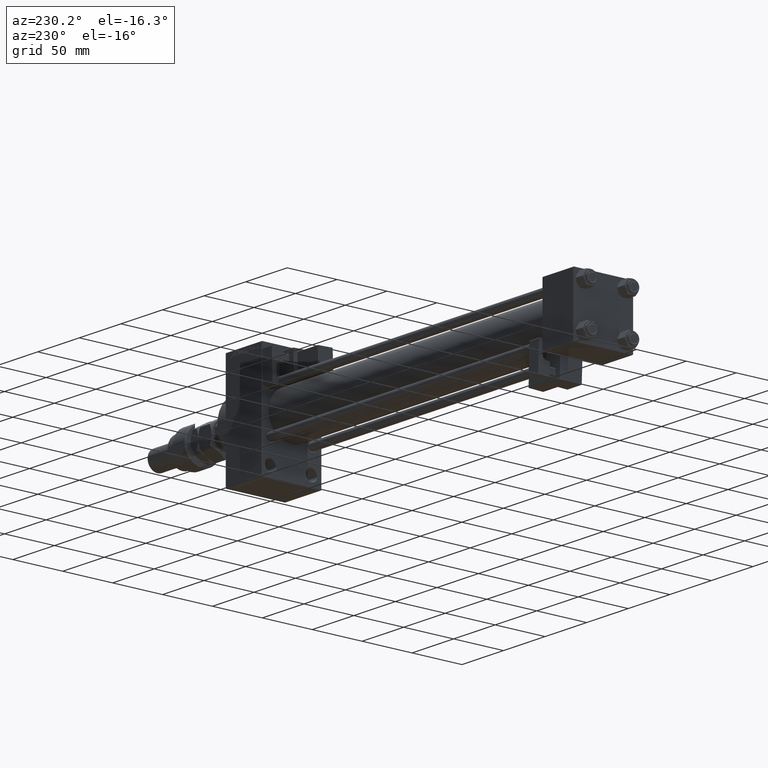
[diagram: clean part render]
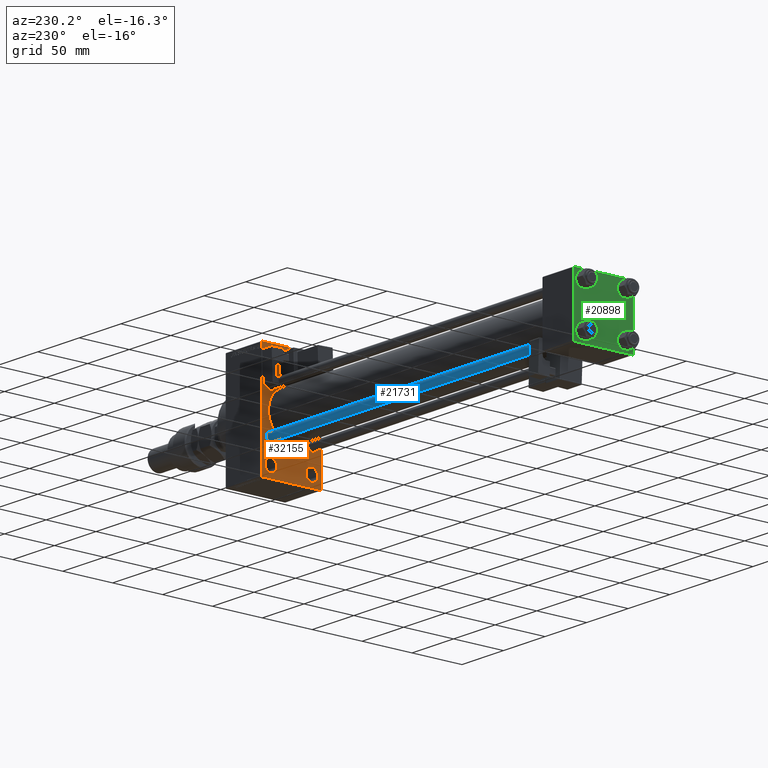
[diagram: same view with three faces highlighted in distinct colors, each labeled with its STEP entity id]
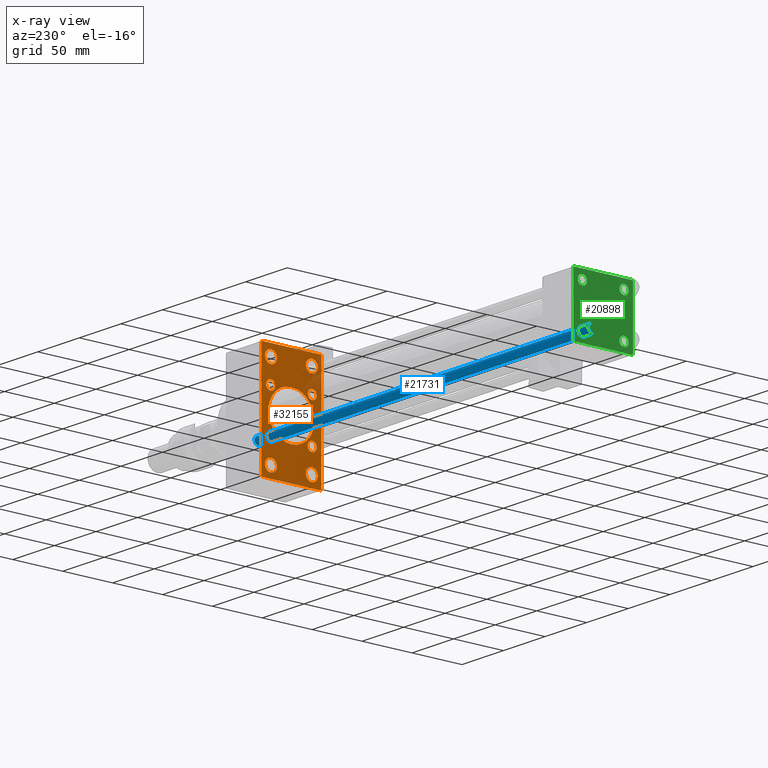
[diagram: x-ray of the same camera — body ghosted, the three highlighted faces saturated]
A machine part, auxiliary view with three faces highlighted in distinct colors.
The next image is the same camera in x-ray (body ghosted, the three faces saturated) — at least one of them is partly hidden behind the body in this view.
Their STEP definitions:

[orange] entity #32155 — the highlighted planar face has unit normal (-1, 0, 0).
#59 = VERTEX_POINT ( 'NONE', #12211 ) ;
#117 = VERTEX_POINT ( 'NONE', #50475 ) ;
#183 = AXIS2_PLACEMENT_3D ( 'NONE', #31248, #50686, #6007 ) ;
#408 = VERTEX_POINT ( 'NONE', #1765 ) ;
#413 = CARTESIAN_POINT ( 'NONE',  ( 375.0000000000000000, -20.50000000000000000, 37.49999999999999289 ) ) ;
#680 = CARTESIAN_POINT ( 'NONE',  ( 375.0000000000000000, 20.50000000000000000, -37.49999999999999289 ) ) ;
#979 = DIRECTION ( 'NONE',  ( 1.000000000000000000, -0.000000000000000000, 0.000000000000000000 ) ) ;
#1020 = CARTESIAN_POINT ( 'NONE',  ( 375.0000000000000000, 29.49999999999999645, 54.49999999999999289 ) ) ;
#1101 = ORIENTED_EDGE ( 'NONE', *, *, #19518, .T. ) ;
#1197 = AXIS2_PLACEMENT_3D ( 'NONE', #47681, #34672, #39453 ) ;
#1434 = EDGE_LOOP ( 'NONE', ( #31017, #28798 ) ) ;
#1578 = VECTOR ( 'NONE', #6321, 1000.000000000000000 ) ;
#1721 = VECTOR ( 'NONE', #31046, 1000.000000000000114 ) ;
#1765 = CARTESIAN_POINT ( 'NONE',  ( 375.0000000000000000, 20.84999999999999787, 16.34999999999999432 ) ) ;
#1812 = CARTESIAN_POINT ( 'NONE',  ( 375.0000000000000000, -42.00000000000048317, -41.99999999999902656 ) ) ;
#1841 = CIRCLE ( 'NONE', #183, 4.500000000000007105 ) ;
#2206 = FACE_BOUND ( 'NONE', #3125, .T. ) ;
#3125 = EDGE_LOOP ( 'NONE', ( #33328, #29159 ) ) ;
#3428 = EDGE_CURVE ( 'NONE', #25368, #44327, #10071, .T. ) ;
#3562 = DIRECTION ( 'NONE',  ( 1.000000000000000000, -0.000000000000000000, 0.000000000000000000 ) ) ;
#3766 = VERTEX_POINT ( 'NONE', #33862 ) ;
#3930 = VECTOR ( 'NONE', #23853, 1000.000000000000000 ) ;
#4395 = EDGE_LOOP ( 'NONE', ( #10748, #25050 ) ) ;
#4497 = DIRECTION ( 'NONE',  ( 0.000000000000000000, 0.000000000000000000, -1.000000000000000000 ) ) ;
#5250 = VERTEX_POINT ( 'NONE', #29129 ) ;
#5382 = AXIS2_PLACEMENT_3D ( 'NONE', #14055, #30282, #10084 ) ;
#5573 = CARTESIAN_POINT ( 'NONE',  ( 375.0000000000000000, -20.84999999999999076, 20.85000000000000497 ) ) ;
#5615 = CIRCLE ( 'NONE', #35328, 4.500000000000007105 ) ;
#5690 = ORIENTED_EDGE ( 'NONE', *, *, #21542, .T. ) ;
#5714 = CARTESIAN_POINT ( 'NONE',  ( 375.0000000000000000, -20.50000000000000000, -43.50000000000000000 ) ) ;
#6007 = DIRECTION ( 'NONE',  ( 0.000000000000000000, 0.000000000000000000, 1.000000000000000000 ) ) ;
#6098 = LINE ( 'NONE', #14074, #33436 ) ;
#6142 = VECTOR ( 'NONE', #50564, 1000.000000000000000 ) ;
#6176 = FACE_BOUND ( 'NONE', #20462, .T. ) ;
#6189 = CIRCLE ( 'NONE', #19803, 4.500000000000007105 ) ;
#6321 = DIRECTION ( 'NONE',  ( 0.000000000000000000, 0.000000000000000000, -1.000000000000000000 ) ) ;
#6338 = DIRECTION ( 'NONE',  ( 0.000000000000000000, 0.7071067811865474617, -0.7071067811865474617 ) ) ;
#6402 = CARTESIAN_POINT ( 'NONE',  ( 375.0000000000000000, -20.50000000000000000, -43.50000000000000000 ) ) ;
#6947 = EDGE_CURVE ( 'NONE', #34941, #34097, #43460, .T. ) ;
#7208 = VERTEX_POINT ( 'NONE', #31034 ) ;
#7414 = ORIENTED_EDGE ( 'NONE', *, *, #44612, .T. ) ;
#7624 = CARTESIAN_POINT ( 'NONE',  ( 375.0000000000000000, 29.99999999999999645, 54.49999999999999289 ) ) ;
#7672 = DIRECTION ( 'NONE',  ( 1.000000000000000000, -0.000000000000000000, 0.000000000000000000 ) ) ;
#8368 = VERTEX_POINT ( 'NONE', #18851 ) ;
#8966 = CARTESIAN_POINT ( 'NONE',  ( 375.0000000000000000, -20.84999999999999076, 25.35000000000001208 ) ) ;
#9182 = ORIENTED_EDGE ( 'NONE', *, *, #3428, .T. ) ;
#9243 = AXIS2_PLACEMENT_3D ( 'NONE', #22633, #51063, #43601 ) ;
#9581 = VERTEX_POINT ( 'NONE', #34736 ) ;
#9906 = EDGE_CURVE ( 'NONE', #30880, #11847, #17242, .T. ) ;
#9924 = FACE_BOUND ( 'NONE', #1434, .T. ) ;
#10071 = LINE ( 'NONE', #43013, #1721 ) ;
#10084 = DIRECTION ( 'NONE',  ( 0.000000000000000000, 0.000000000000000000, -1.000000000000000000 ) ) ;
#10086 = EDGE_LOOP ( 'NONE', ( #19036, #33116 ) ) ;
#10480 = CARTESIAN_POINT ( 'NONE',  ( 375.0000000000000000, 20.50000000000000000, 37.49999999999999289 ) ) ;
#10653 = DIRECTION ( 'NONE',  ( 0.000000000000000000, 0.000000000000000000, 1.000000000000000000 ) ) ;
#10701 = DIRECTION ( 'NONE',  ( -0.000000000000000000, 0.000000000000000000, 1.000000000000000000 ) ) ;
#10748 = ORIENTED_EDGE ( 'NONE', *, *, #42788, .T. ) ;
#11625 = CARTESIAN_POINT ( 'NONE',  ( 375.0000000000000000, -20.50000000000000000, -37.49999999999999289 ) ) ;
#11639 = DIRECTION ( 'NONE',  ( 1.000000000000000000, -0.000000000000000000, 0.000000000000000000 ) ) ;
#11847 = VERTEX_POINT ( 'NONE', #11625 ) ;
#11953 = VERTEX_POINT ( 'NONE', #8966 ) ;
#11989 = ORIENTED_EDGE ( 'NONE', *, *, #14579, .T. ) ;
#12211 = CARTESIAN_POINT ( 'NONE',  ( 375.0000000000000000, -20.50000000000000000, 49.50000000000000000 ) ) ;
#12250 = VERTEX_POINT ( 'NONE', #413 ) ;
#12419 = CARTESIAN_POINT ( 'NONE',  ( 375.0000000000000000, -20.50000000000000000, 43.50000000000000000 ) ) ;
#12435 = EDGE_LOOP ( 'NONE', ( #11989, #1101, #51547, #9182, #19802, #7414, #13062, #47613 ) ) ;
#12451 = AXIS2_PLACEMENT_3D ( 'NONE', #42874, #35423, #38876 ) ;
#12606 = CARTESIAN_POINT ( 'NONE',  ( 375.0000000000000000, 41.99999999999996447, -41.99999999999996447 ) ) ;
#12891 = EDGE_CURVE ( 'NONE', #16902, #40856, #19063, .T. ) ;
#13062 = ORIENTED_EDGE ( 'NONE', *, *, #40698, .T. ) ;
#14055 = CARTESIAN_POINT ( 'NONE',  ( 375.0000000000000000, -2.602085213965210642E-15, 0.000000000000000000 ) ) ;
#14074 = CARTESIAN_POINT ( 'NONE',  ( 375.0000000000000000, 29.99999999999999645, -54.49999999999999289 ) ) ;
#14410 = FACE_BOUND ( 'NONE', #41681, .T. ) ;
#14579 = EDGE_CURVE ( 'NONE', #3766, #23573, #6098, .T. ) ;
#14672 = FACE_BOUND ( 'NONE', #49464, .T. ) ;
#14749 = EDGE_CURVE ( 'NONE', #7208, #43477, #29192, .T. ) ;
#14859 = VERTEX_POINT ( 'NONE', #1020 ) ;
#15129 = DIRECTION ( 'NONE',  ( 1.000000000000000000, -0.000000000000000000, 0.000000000000000000 ) ) ;
#15358 = LINE ( 'NONE', #43276, #18190 ) ;
#15772 = CARTESIAN_POINT ( 'NONE',  ( 375.0000000000000000, 20.50000000000000000, -43.50000000000000000 ) ) ;
#15855 = EDGE_CURVE ( 'NONE', #12250, #59, #17353, .T. ) ;
#16902 = VERTEX_POINT ( 'NONE', #49067 ) ;
#16907 = AXIS2_PLACEMENT_3D ( 'NONE', #33175, #24224, #50170 ) ;
#17242 = CIRCLE ( 'NONE', #18955, 6.000000000000005329 ) ;
#17353 = CIRCLE ( 'NONE', #28398, 6.000000000000005329 ) ;
#17553 = DIRECTION ( 'NONE',  ( 1.000000000000000000, -0.000000000000000000, 0.000000000000000000 ) ) ;
#18157 = FACE_BOUND ( 'NONE', #40794, .T. ) ;
#18190 = VECTOR ( 'NONE', #6338, 1000.000000000000114 ) ;
#18851 = CARTESIAN_POINT ( 'NONE',  ( 375.0000000000000000, 20.50000000000000000, -49.50000000000000000 ) ) ;
#18955 = AXIS2_PLACEMENT_3D ( 'NONE', #5714, #21938, #33114 ) ;
#19036 = ORIENTED_EDGE ( 'NONE', *, *, #25389, .T. ) ;
#19063 = CIRCLE ( 'NONE', #41144, 4.500000000000007105 ) ;
#19518 = EDGE_CURVE ( 'NONE', #23573, #9581, #30769, .T. ) ;
#19654 = EDGE_CURVE ( 'NONE', #14859, #44327, #44047, .T. ) ;
#19708 = EDGE_CURVE ( 'NONE', #117, #20716, #5615, .T. ) ;
#19802 = ORIENTED_EDGE ( 'NONE', *, *, #19654, .F. ) ;
#19803 = AXIS2_PLACEMENT_3D ( 'NONE', #5573, #17553, #21539 ) ;
#20462 = EDGE_LOOP ( 'NONE', ( #43248, #5690 ) ) ;
#20716 = VERTEX_POINT ( 'NONE', #47784 ) ;
#21136 = CIRCLE ( 'NONE', #16907, 4.500000000000007105 ) ;
#21425 = VERTEX_POINT ( 'NONE', #25828 ) ;
#21539 = DIRECTION ( 'NONE',  ( 0.000000000000000000, 0.000000000000000000, 1.000000000000000000 ) ) ;
#21542 = EDGE_CURVE ( 'NONE', #43477, #7208, #38112, .T. ) ;
#21938 = DIRECTION ( 'NONE',  ( 1.000000000000000000, -0.000000000000000000, 0.000000000000000000 ) ) ;
#22417 = FACE_BOUND ( 'NONE', #4395, .T. ) ;
#22551 = CARTESIAN_POINT ( 'NONE',  ( 375.0000000000000000, -30.00000000000000000, 54.50000000000000000 ) ) ;
#22598 = DIRECTION ( 'NONE',  ( 0.000000000000000000, -1.000000000000000000, -1.156482317317871478E-16 ) ) ;
#22633 = CARTESIAN_POINT ( 'NONE',  ( 375.0000000000000000, 20.50000000000000000, 43.50000000000000000 ) ) ;
#23398 = CARTESIAN_POINT ( 'NONE',  ( 375.0000000000000000, -29.49999999999994671, -54.50000000000000000 ) ) ;
#23573 = VERTEX_POINT ( 'NONE', #23398 ) ;
#23853 = DIRECTION ( 'NONE',  ( 0.000000000000000000, -1.000000000000000000, 1.156482317317871478E-16 ) ) ;
#24224 = DIRECTION ( 'NONE',  ( 1.000000000000000000, -0.000000000000000000, 0.000000000000000000 ) ) ;
#24290 = CARTESIAN_POINT ( 'NONE',  ( 375.0000000000000000, -29.49999999999994671, 54.50000000000000000 ) ) ;
#25050 = ORIENTED_EDGE ( 'NONE', *, *, #6947, .T. ) ;
#25191 = CIRCLE ( 'NONE', #12451, 4.500000000000007105 ) ;
#25368 = VERTEX_POINT ( 'NONE', #32681 ) ;
#25389 = EDGE_CURVE ( 'NONE', #40372, #8368, #36231, .T. ) ;
#25761 = CARTESIAN_POINT ( 'NONE',  ( 375.0000000000000000, -20.84999999999999076, -20.85000000000000497 ) ) ;
#25811 = ORIENTED_EDGE ( 'NONE', *, *, #12891, .T. ) ;
#25828 = CARTESIAN_POINT ( 'NONE',  ( 375.0000000000000000, -20.84999999999999076, 16.34999999999999787 ) ) ;
#25861 = EDGE_CURVE ( 'NONE', #28994, #408, #25191, .T. ) ;
#25944 = ORIENTED_EDGE ( 'NONE', *, *, #27739, .T. ) ;
#26004 = DIRECTION ( 'NONE',  ( 0.000000000000000000, 0.000000000000000000, 1.000000000000000000 ) ) ;
#26265 = DIRECTION ( 'NONE',  ( 0.000000000000000000, -0.7071067811865352493, 0.7071067811865597852 ) ) ;
#26986 = ORIENTED_EDGE ( 'NONE', *, *, #9906, .T. ) ;
#27007 = EDGE_CURVE ( 'NONE', #36133, #3766, #49568, .T. ) ;
#27537 = DIRECTION ( 'NONE',  ( 0.000000000000000000, 0.000000000000000000, 1.000000000000000000 ) ) ;
#27655 = DIRECTION ( 'NONE',  ( 1.000000000000000000, -0.000000000000000000, 0.000000000000000000 ) ) ;
#27739 = EDGE_CURVE ( 'NONE', #408, #28994, #42246, .T. ) ;
#28056 = DIRECTION ( 'NONE',  ( 1.000000000000000000, -0.000000000000000000, 0.000000000000000000 ) ) ;
#28398 = AXIS2_PLACEMENT_3D ( 'NONE', #40119, #15129, #31342 ) ;
#28669 = VECTOR ( 'NONE', #49308, 1000.000000000000114 ) ;
#28719 = CARTESIAN_POINT ( 'NONE',  ( 375.0000000000000000, -20.84999999999999076, -16.34999999999999787 ) ) ;
#28798 = ORIENTED_EDGE ( 'NONE', *, *, #47582, .T. ) ;
#28994 = VERTEX_POINT ( 'NONE', #47826 ) ;
#29129 = CARTESIAN_POINT ( 'NONE',  ( 375.0000000000000000, 29.99999999999999645, 53.99999999999999289 ) ) ;
#29159 = ORIENTED_EDGE ( 'NONE', *, *, #15855, .T. ) ;
#29192 = CIRCLE ( 'NONE', #40239, 6.000000000000005329 ) ;
#29774 = EDGE_CURVE ( 'NONE', #25368, #9581, #34239, .T. ) ;
#30282 = DIRECTION ( 'NONE',  ( 1.000000000000000000, 0.000000000000000000, 0.000000000000000000 ) ) ;
#30311 = ORIENTED_EDGE ( 'NONE', *, *, #19708, .T. ) ;
#30640 = PLANE ( 'NONE',  #39899 ) ;
#30668 = EDGE_CURVE ( 'NONE', #40856, #16902, #21136, .T. ) ;
#30712 = AXIS2_PLACEMENT_3D ( 'NONE', #32941, #45172, #4497 ) ;
#30769 = LINE ( 'NONE', #1812, #41295 ) ;
#30880 = VERTEX_POINT ( 'NONE', #52285 ) ;
#30898 = FACE_BOUND ( 'NONE', #10086, .T. ) ;
#31017 = ORIENTED_EDGE ( 'NONE', *, *, #50291, .T. ) ;
#31034 = CARTESIAN_POINT ( 'NONE',  ( 375.0000000000000000, 20.50000000000000000, 49.50000000000000000 ) ) ;
#31046 = DIRECTION ( 'NONE',  ( -0.000000000000000000, 0.7071067811865451302, 0.7071067811865500152 ) ) ;
#31248 = CARTESIAN_POINT ( 'NONE',  ( 375.0000000000000000, -20.84999999999999076, 20.85000000000000497 ) ) ;
#31342 = DIRECTION ( 'NONE',  ( 0.000000000000000000, 0.000000000000000000, 1.000000000000000000 ) ) ;
#31874 = CARTESIAN_POINT ( 'NONE',  ( 375.0000000000000000, 20.50000000000000000, 43.50000000000000000 ) ) ;
#31998 = DIRECTION ( 'NONE',  ( 0.000000000000000000, 0.000000000000000000, 1.000000000000000000 ) ) ;
#32155 = ADVANCED_FACE ( 'NONE', ( #2206, #14672, #30898, #6176, #9924, #34629, #18157, #14410, #22417, #34366 ), #30640, .T. ) ;
#32681 = CARTESIAN_POINT ( 'NONE',  ( 375.0000000000000000, -30.00000000000000000, 53.99999999999994316 ) ) ;
#32941 = CARTESIAN_POINT ( 'NONE',  ( 375.0000000000000000, -2.602085213965210642E-15, 0.000000000000000000 ) ) ;
#33114 = DIRECTION ( 'NONE',  ( 0.000000000000000000, 0.000000000000000000, 1.000000000000000000 ) ) ;
#33116 = ORIENTED_EDGE ( 'NONE', *, *, #48989, .T. ) ;
#33175 = CARTESIAN_POINT ( 'NONE',  ( 375.0000000000000000, -20.84999999999999076, -20.85000000000000497 ) ) ;
#33328 = ORIENTED_EDGE ( 'NONE', *, *, #38535, .T. ) ;
#33436 = VECTOR ( 'NONE', #22598, 1000.000000000000000 ) ;
#33862 = CARTESIAN_POINT ( 'NONE',  ( 375.0000000000000000, 29.49999999999993960, -54.49999999999999289 ) ) ;
#33881 = ORIENTED_EDGE ( 'NONE', *, *, #30668, .T. ) ;
#33968 = DIRECTION ( 'NONE',  ( 1.000000000000000000, -0.000000000000000000, 0.000000000000000000 ) ) ;
#34097 = VERTEX_POINT ( 'NONE', #46589 ) ;
#34239 = LINE ( 'NONE', #22551, #1578 ) ;
#34333 = LINE ( 'NONE', #46820, #6142 ) ;
#34366 = FACE_OUTER_BOUND ( 'NONE', #12435, .T. ) ;
#34629 = FACE_BOUND ( 'NONE', #43668, .T. ) ;
#34672 = DIRECTION ( 'NONE',  ( 1.000000000000000000, -0.000000000000000000, 0.000000000000000000 ) ) ;
#34736 = CARTESIAN_POINT ( 'NONE',  ( 375.0000000000000000, -30.00000000000000000, -53.99999999999992895 ) ) ;
#34941 = VERTEX_POINT ( 'NONE', #37837 ) ;
#35147 = CARTESIAN_POINT ( 'NONE',  ( 375.0000000000000000, 0.000000000000000000, 0.000000000000000000 ) ) ;
#35328 = AXIS2_PLACEMENT_3D ( 'NONE', #41378, #979, #37374 ) ;
#35423 = DIRECTION ( 'NONE',  ( 1.000000000000000000, -0.000000000000000000, 0.000000000000000000 ) ) ;
#36060 = AXIS2_PLACEMENT_3D ( 'NONE', #6402, #27655, #10653 ) ;
#36133 = VERTEX_POINT ( 'NONE', #36718 ) ;
#36231 = CIRCLE ( 'NONE', #49819, 6.000000000000005329 ) ;
#36312 = ORIENTED_EDGE ( 'NONE', *, *, #25861, .T. ) ;
#36718 = CARTESIAN_POINT ( 'NONE',  ( 375.0000000000000000, 29.99999999999999645, -53.99999999999993605 ) ) ;
#37374 = DIRECTION ( 'NONE',  ( 0.000000000000000000, 0.000000000000000000, 1.000000000000000000 ) ) ;
#37694 = CARTESIAN_POINT ( 'NONE',  ( 375.0000000000000000, 20.50000000000000000, -43.50000000000000000 ) ) ;
#37837 = CARTESIAN_POINT ( 'NONE',  ( 375.0000000000000000, 2.146024240737016609E-16, -23.00000000000000000 ) ) ;
#38112 = CIRCLE ( 'NONE', #9243, 6.000000000000005329 ) ;
#38535 = EDGE_CURVE ( 'NONE', #59, #12250, #49386, .T. ) ;
#38876 = DIRECTION ( 'NONE',  ( 0.000000000000000000, 0.000000000000000000, 1.000000000000000000 ) ) ;
#39324 = DIRECTION ( 'NONE',  ( 0.000000000000000000, 0.000000000000000000, 1.000000000000000000 ) ) ;
#39453 = DIRECTION ( 'NONE',  ( 0.000000000000000000, 0.000000000000000000, 1.000000000000000000 ) ) ;
#39763 = CARTESIAN_POINT ( 'NONE',  ( 375.0000000000000000, 20.84999999999999787, 20.85000000000000142 ) ) ;
#39899 = AXIS2_PLACEMENT_3D ( 'NONE', #35147, #47127, #10701 ) ;
#40119 = CARTESIAN_POINT ( 'NONE',  ( 375.0000000000000000, -20.50000000000000000, 43.50000000000000000 ) ) ;
#40239 = AXIS2_PLACEMENT_3D ( 'NONE', #31874, #7672, #39324 ) ;
#40372 = VERTEX_POINT ( 'NONE', #680 ) ;
#40698 = EDGE_CURVE ( 'NONE', #5250, #36133, #34333, .T. ) ;
#40794 = EDGE_LOOP ( 'NONE', ( #47494, #30311 ) ) ;
#40804 = DIRECTION ( 'NONE',  ( 0.000000000000000000, 0.000000000000000000, 1.000000000000000000 ) ) ;
#40805 = DIRECTION ( 'NONE',  ( 1.000000000000000000, -0.000000000000000000, 0.000000000000000000 ) ) ;
#40856 = VERTEX_POINT ( 'NONE', #28719 ) ;
#41144 = AXIS2_PLACEMENT_3D ( 'NONE', #25761, #28056, #40804 ) ;
#41295 = VECTOR ( 'NONE', #26265, 1000.000000000000000 ) ;
#41378 = CARTESIAN_POINT ( 'NONE',  ( 375.0000000000000000, 20.84999999999999787, -20.85000000000000142 ) ) ;
#41681 = EDGE_LOOP ( 'NONE', ( #33881, #25811 ) ) ;
#42246 = CIRCLE ( 'NONE', #49070, 4.500000000000007105 ) ;
#42788 = EDGE_CURVE ( 'NONE', #34097, #34941, #44450, .T. ) ;
#42874 = CARTESIAN_POINT ( 'NONE',  ( 375.0000000000000000, 20.84999999999999787, 20.85000000000000142 ) ) ;
#43013 = CARTESIAN_POINT ( 'NONE',  ( 375.0000000000000000, -42.00000000000007105, 41.99999999999977973 ) ) ;
#43248 = ORIENTED_EDGE ( 'NONE', *, *, #14749, .T. ) ;
#43276 = CARTESIAN_POINT ( 'NONE',  ( 375.0000000000000000, 41.99999999999998579, 41.99999999999998579 ) ) ;
#43460 = CIRCLE ( 'NONE', #30712, 23.00000000000000000 ) ;
#43477 = VERTEX_POINT ( 'NONE', #10480 ) ;
#43544 = DIRECTION ( 'NONE',  ( 0.000000000000000000, 0.000000000000000000, 1.000000000000000000 ) ) ;
#43601 = DIRECTION ( 'NONE',  ( 0.000000000000000000, 0.000000000000000000, 1.000000000000000000 ) ) ;
#43668 = EDGE_LOOP ( 'NONE', ( #36312, #25944 ) ) ;
#44047 = LINE ( 'NONE', #7624, #3930 ) ;
#44181 = EDGE_CURVE ( 'NONE', #20716, #117, #47021, .T. ) ;
#44327 = VERTEX_POINT ( 'NONE', #24290 ) ;
#44371 = AXIS2_PLACEMENT_3D ( 'NONE', #15772, #3562, #31998 ) ;
#44450 = CIRCLE ( 'NONE', #5382, 23.00000000000000000 ) ;
#44612 = EDGE_CURVE ( 'NONE', #14859, #5250, #15358, .T. ) ;
#45172 = DIRECTION ( 'NONE',  ( 1.000000000000000000, 0.000000000000000000, 0.000000000000000000 ) ) ;
#46589 = CARTESIAN_POINT ( 'NONE',  ( 375.0000000000000000, -2.602085213965210642E-15, 23.00000000000000000 ) ) ;
#46820 = CARTESIAN_POINT ( 'NONE',  ( 375.0000000000000000, 29.99999999999999645, 54.49999999999999289 ) ) ;
#47021 = CIRCLE ( 'NONE', #1197, 4.500000000000007105 ) ;
#47127 = DIRECTION ( 'NONE',  ( -1.000000000000000000, 0.000000000000000000, -0.000000000000000000 ) ) ;
#47494 = ORIENTED_EDGE ( 'NONE', *, *, #44181, .T. ) ;
#47582 = EDGE_CURVE ( 'NONE', #21425, #11953, #1841, .T. ) ;
#47613 = ORIENTED_EDGE ( 'NONE', *, *, #27007, .T. ) ;
#47681 = CARTESIAN_POINT ( 'NONE',  ( 375.0000000000000000, 20.84999999999999787, -20.85000000000000142 ) ) ;
#47784 = CARTESIAN_POINT ( 'NONE',  ( 375.0000000000000000, 20.84999999999999787, -16.34999999999999432 ) ) ;
#47826 = CARTESIAN_POINT ( 'NONE',  ( 375.0000000000000000, 20.84999999999999787, 25.35000000000000853 ) ) ;
#48625 = CIRCLE ( 'NONE', #44371, 6.000000000000005329 ) ;
#48989 = EDGE_CURVE ( 'NONE', #8368, #40372, #48625, .T. ) ;
#49067 = CARTESIAN_POINT ( 'NONE',  ( 375.0000000000000000, -20.84999999999999076, -25.35000000000001208 ) ) ;
#49070 = AXIS2_PLACEMENT_3D ( 'NONE', #39763, #40805, #27537 ) ;
#49308 = DIRECTION ( 'NONE',  ( -0.000000000000000000, -0.7071067811865474617, -0.7071067811865474617 ) ) ;
#49386 = CIRCLE ( 'NONE', #51929, 6.000000000000005329 ) ;
#49464 = EDGE_LOOP ( 'NONE', ( #49927, #26986 ) ) ;
#49568 = LINE ( 'NONE', #12606, #28669 ) ;
#49819 = AXIS2_PLACEMENT_3D ( 'NONE', #37694, #33968, #26004 ) ;
#49927 = ORIENTED_EDGE ( 'NONE', *, *, #52213, .T. ) ;
#50170 = DIRECTION ( 'NONE',  ( 0.000000000000000000, 0.000000000000000000, 1.000000000000000000 ) ) ;
#50291 = EDGE_CURVE ( 'NONE', #11953, #21425, #6189, .T. ) ;
#50475 = CARTESIAN_POINT ( 'NONE',  ( 375.0000000000000000, 20.84999999999999787, -25.35000000000000853 ) ) ;
#50564 = DIRECTION ( 'NONE',  ( 0.000000000000000000, 0.000000000000000000, -1.000000000000000000 ) ) ;
#50686 = DIRECTION ( 'NONE',  ( 1.000000000000000000, -0.000000000000000000, 0.000000000000000000 ) ) ;
#51063 = DIRECTION ( 'NONE',  ( 1.000000000000000000, -0.000000000000000000, 0.000000000000000000 ) ) ;
#51547 = ORIENTED_EDGE ( 'NONE', *, *, #29774, .F. ) ;
#51929 = AXIS2_PLACEMENT_3D ( 'NONE', #12419, #11639, #43544 ) ;
#52208 = CIRCLE ( 'NONE', #36060, 6.000000000000005329 ) ;
#52213 = EDGE_CURVE ( 'NONE', #11847, #30880, #52208, .T. ) ;
#52285 = CARTESIAN_POINT ( 'NONE',  ( 375.0000000000000000, -20.50000000000000000, -49.50000000000000000 ) ) ;

[blue] entity #21731 — the highlighted cylindrical surface (edge-blend (fillet) strip) has radius 4 mm, axis along (1, -0, 0).
#1372 = ORIENTED_EDGE ( 'NONE', *, *, #13542, .T. ) ;
#2932 = EDGE_CURVE ( 'NONE', #40141, #21712, #42409, .T. ) ;
#2963 = VERTEX_POINT ( 'NONE', #39490 ) ;
#6939 = DIRECTION ( 'NONE',  ( -0.000000000000000000, -0.000000000000000000, 1.000000000000000000 ) ) ;
#7219 = CIRCLE ( 'NONE', #12304, 4.000000000000000000 ) ;
#7891 = CARTESIAN_POINT ( 'NONE',  ( -4.000000000000000000, 0.000000000000000000, 402.0000000000000000 ) ) ;
#8928 = VERTEX_POINT ( 'NONE', #51346 ) ;
#11717 = CARTESIAN_POINT ( 'NONE',  ( 0.000000000000000000, 0.000000000000000000, 0.5000000000000004441 ) ) ;
#12304 = AXIS2_PLACEMENT_3D ( 'NONE', #11717, #6939, #23167 ) ;
#12484 = CARTESIAN_POINT ( 'NONE',  ( 4.000000000000000000, 4.898587196589412829E-16, 0.5000000000000004441 ) ) ;
#12833 = ORIENTED_EDGE ( 'NONE', *, *, #51434, .F. ) ;
#13521 = CARTESIAN_POINT ( 'NONE',  ( 0.000000000000000000, 0.000000000000000000, 402.0000000000000000 ) ) ;
#13542 = EDGE_CURVE ( 'NONE', #21712, #8928, #7219, .T. ) ;
#13989 = DIRECTION ( 'NONE',  ( 1.000000000000000000, 0.000000000000000000, 0.000000000000000000 ) ) ;
#16949 = DIRECTION ( 'NONE',  ( 0.000000000000000000, 0.000000000000000000, -1.000000000000000000 ) ) ;
#18112 = CIRCLE ( 'NONE', #41067, 4.000000000000000000 ) ;
#21263 = DIRECTION ( 'NONE',  ( -0.000000000000000000, -0.000000000000000000, -1.000000000000000000 ) ) ;
#21712 = VERTEX_POINT ( 'NONE', #12484 ) ;
#21731 = ADVANCED_FACE ( 'NONE', ( #37461 ), #29746, .T. ) ;
#22242 = CARTESIAN_POINT ( 'NONE',  ( 4.000000000000000000, 4.898587196589412829E-16, 401.5000000000000568 ) ) ;
#23167 = DIRECTION ( 'NONE',  ( 1.000000000000000000, 0.000000000000000000, 0.000000000000000000 ) ) ;
#24115 = DIRECTION ( 'NONE',  ( -0.000000000000000000, -0.000000000000000000, -1.000000000000000000 ) ) ;
#26993 = CARTESIAN_POINT ( 'NONE',  ( 4.000000000000000000, 4.898587196589412829E-16, 402.0000000000000000 ) ) ;
#29579 = ORIENTED_EDGE ( 'NONE', *, *, #2932, .T. ) ;
#29746 = CYLINDRICAL_SURFACE ( 'NONE', #35529, 4.000000000000000000 ) ;
#31829 = LINE ( 'NONE', #7891, #37677 ) ;
#33421 = CARTESIAN_POINT ( 'NONE',  ( 0.000000000000000000, 0.000000000000000000, 401.5000000000000568 ) ) ;
#35529 = AXIS2_PLACEMENT_3D ( 'NONE', #13521, #21263, #37200 ) ;
#37200 = DIRECTION ( 'NONE',  ( -1.000000000000000000, 0.000000000000000000, 0.000000000000000000 ) ) ;
#37461 = FACE_OUTER_BOUND ( 'NONE', #49305, .T. ) ;
#37677 = VECTOR ( 'NONE', #24115, 1000.000000000000000 ) ;
#38157 = DIRECTION ( 'NONE',  ( -0.000000000000000000, -0.000000000000000000, -1.000000000000000000 ) ) ;
#38180 = VECTOR ( 'NONE', #38157, 1000.000000000000000 ) ;
#38566 = ORIENTED_EDGE ( 'NONE', *, *, #43094, .T. ) ;
#39490 = CARTESIAN_POINT ( 'NONE',  ( -4.000000000000000000, 0.000000000000000000, 401.5000000000000568 ) ) ;
#40141 = VERTEX_POINT ( 'NONE', #22242 ) ;
#41067 = AXIS2_PLACEMENT_3D ( 'NONE', #33421, #16949, #13989 ) ;
#42409 = LINE ( 'NONE', #26993, #38180 ) ;
#43094 = EDGE_CURVE ( 'NONE', #2963, #40141, #18112, .T. ) ;
#49305 = EDGE_LOOP ( 'NONE', ( #38566, #29579, #1372, #12833 ) ) ;
#51346 = CARTESIAN_POINT ( 'NONE',  ( -4.000000000000000000, 0.000000000000000000, 0.5000000000000004441 ) ) ;
#51434 = EDGE_CURVE ( 'NONE', #2963, #8928, #31829, .T. ) ;

[green] entity #20898 — the highlighted planar face has unit normal (-1, 0, 0).
#161 = VERTEX_POINT ( 'NONE', #43014 ) ;
#279 = EDGE_CURVE ( 'NONE', #9954, #44161, #52323, .T. ) ;
#578 = ORIENTED_EDGE ( 'NONE', *, *, #27625, .T. ) ;
#710 = AXIS2_PLACEMENT_3D ( 'NONE', #1531, #12963, #13736 ) ;
#809 = CARTESIAN_POINT ( 'NONE',  ( 0.000000000000000000, -20.84999999999999076, -20.85000000000000497 ) ) ;
#1009 = AXIS2_PLACEMENT_3D ( 'NONE', #44909, #5012, #4243 ) ;
#1505 = CIRCLE ( 'NONE', #5746, 4.500000000000017764 ) ;
#1531 = CARTESIAN_POINT ( 'NONE',  ( 0.000000000000000000, -20.84999999999999076, -20.85000000000000497 ) ) ;
#1833 = ORIENTED_EDGE ( 'NONE', *, *, #47954, .F. ) ;
#1907 = AXIS2_PLACEMENT_3D ( 'NONE', #809, #28463, #28192 ) ;
#2282 = CARTESIAN_POINT ( 'NONE',  ( 0.000000000000000000, 29.99999999999999289, 30.00000000000000000 ) ) ;
#2296 = DIRECTION ( 'NONE',  ( 0.000000000000000000, 0.000000000000000000, 1.000000000000000000 ) ) ;
#2363 = EDGE_CURVE ( 'NONE', #30697, #38473, #3409, .T. ) ;
#2583 = AXIS2_PLACEMENT_3D ( 'NONE', #27912, #35880, #40660 ) ;
#2864 = EDGE_CURVE ( 'NONE', #36058, #48468, #22490, .T. ) ;
#3409 = CIRCLE ( 'NONE', #9360, 4.500000000000017764 ) ;
#3596 = VECTOR ( 'NONE', #22706, 1000.000000000000000 ) ;
#4243 = DIRECTION ( 'NONE',  ( 0.000000000000000000, 0.000000000000000000, 1.000000000000000000 ) ) ;
#5012 = DIRECTION ( 'NONE',  ( 1.000000000000000000, -0.000000000000000000, 0.000000000000000000 ) ) ;
#5746 = AXIS2_PLACEMENT_3D ( 'NONE', #27270, #26484, #2296 ) ;
#6911 = EDGE_CURVE ( 'NONE', #38473, #30697, #36676, .T. ) ;
#7433 = DIRECTION ( 'NONE',  ( 0.000000000000000000, 0.000000000000000000, 1.000000000000000000 ) ) ;
#7504 = DIRECTION ( 'NONE',  ( 1.000000000000000000, -0.000000000000000000, 0.000000000000000000 ) ) ;
#7740 = VERTEX_POINT ( 'NONE', #46368 ) ;
#8647 = CARTESIAN_POINT ( 'NONE',  ( 0.000000000000000000, 29.99999999999999289, 29.50000000000000000 ) ) ;
#8968 = DIRECTION ( 'NONE',  ( -1.000000000000000000, 0.000000000000000000, -0.000000000000000000 ) ) ;
#9314 = CARTESIAN_POINT ( 'NONE',  ( 0.000000000000000000, 20.84999999999999787, 25.35000000000001918 ) ) ;
#9360 = AXIS2_PLACEMENT_3D ( 'NONE', #48110, #36398, #7433 ) ;
#9954 = VERTEX_POINT ( 'NONE', #35471 ) ;
#10921 = CARTESIAN_POINT ( 'NONE',  ( 0.000000000000000000, 20.84999999999999787, -16.34999999999998366 ) ) ;
#10965 = LINE ( 'NONE', #32220, #33222 ) ;
#11452 = CARTESIAN_POINT ( 'NONE',  ( 0.000000000000000000, 29.74999999999999645, 29.74999999999999645 ) ) ;
#11844 = VERTEX_POINT ( 'NONE', #44857 ) ;
#11890 = VECTOR ( 'NONE', #34177, 1000.000000000000000 ) ;
#12205 = CARTESIAN_POINT ( 'NONE',  ( 0.000000000000000000, 29.99999999999999289, 30.00000000000000000 ) ) ;
#12366 = DIRECTION ( 'NONE',  ( -0.000000000000000000, 0.7071067811865474617, 0.7071067811865474617 ) ) ;
#12963 = DIRECTION ( 'NONE',  ( 1.000000000000000000, -0.000000000000000000, 0.000000000000000000 ) ) ;
#13428 = EDGE_CURVE ( 'NONE', #36058, #47832, #35390, .T. ) ;
#13736 = DIRECTION ( 'NONE',  ( 0.000000000000000000, 0.000000000000000000, 1.000000000000000000 ) ) ;
#15208 = DIRECTION ( 'NONE',  ( 0.000000000000000000, 0.000000000000000000, 1.000000000000000000 ) ) ;
#15352 = DIRECTION ( 'NONE',  ( 0.000000000000000000, -0.7071067811865474617, 0.7071067811865474617 ) ) ;
#16404 = FACE_BOUND ( 'NONE', #30486, .T. ) ;
#16761 = VECTOR ( 'NONE', #31899, 1000.000000000000000 ) ;
#17319 = VERTEX_POINT ( 'NONE', #10921 ) ;
#17423 = ORIENTED_EDGE ( 'NONE', *, *, #42415, .T. ) ;
#17566 = ORIENTED_EDGE ( 'NONE', *, *, #28278, .T. ) ;
#17585 = CARTESIAN_POINT ( 'NONE',  ( 0.000000000000000000, -30.00000000000000000, 29.49999999999999289 ) ) ;
#18034 = CIRCLE ( 'NONE', #1907, 4.500000000000017764 ) ;
#18196 = EDGE_CURVE ( 'NONE', #47432, #161, #47870, .T. ) ;
#19243 = LINE ( 'NONE', #23219, #3596 ) ;
#19256 = ORIENTED_EDGE ( 'NONE', *, *, #37338, .T. ) ;
#19482 = DIRECTION ( 'NONE',  ( 0.000000000000000000, -1.000000000000000000, -1.156482317317871725E-16 ) ) ;
#20056 = ORIENTED_EDGE ( 'NONE', *, *, #6911, .T. ) ;
#20678 = DIRECTION ( 'NONE',  ( -0.000000000000000000, 0.000000000000000000, 1.000000000000000000 ) ) ;
#20898 = ADVANCED_FACE ( 'NONE', ( #41636, #29162, #16404, #45375, #40597 ), #40859, .T. ) ;
#21153 = CARTESIAN_POINT ( 'NONE',  ( 0.000000000000000000, -30.00000000000000000, -29.50000000000001776 ) ) ;
#22352 = ORIENTED_EDGE ( 'NONE', *, *, #35220, .T. ) ;
#22490 = LINE ( 'NONE', #2282, #11890 ) ;
#22532 = ORIENTED_EDGE ( 'NONE', *, *, #2864, .F. ) ;
#22706 = DIRECTION ( 'NONE',  ( 0.000000000000000000, 0.000000000000000000, -1.000000000000000000 ) ) ;
#23219 = CARTESIAN_POINT ( 'NONE',  ( 0.000000000000000000, -30.00000000000000000, 29.99999999999999289 ) ) ;
#23655 = EDGE_CURVE ( 'NONE', #47832, #47432, #27907, .T. ) ;
#23813 = LINE ( 'NONE', #44548, #36819 ) ;
#23886 = CIRCLE ( 'NONE', #50172, 4.500000000000017764 ) ;
#25175 = EDGE_LOOP ( 'NONE', ( #26063, #39129, #36715, #26345, #1833, #52611, #22532, #45503 ) ) ;
#25509 = CIRCLE ( 'NONE', #2583, 4.500000000000017764 ) ;
#26063 = ORIENTED_EDGE ( 'NONE', *, *, #23655, .T. ) ;
#26345 = ORIENTED_EDGE ( 'NONE', *, *, #279, .T. ) ;
#26484 = DIRECTION ( 'NONE',  ( 1.000000000000000000, -0.000000000000000000, 0.000000000000000000 ) ) ;
#26802 = VECTOR ( 'NONE', #39375, 999.9999999999998863 ) ;
#27143 = CARTESIAN_POINT ( 'NONE',  ( 0.000000000000000000, 29.74999999999957723, -29.75000000000040501 ) ) ;
#27270 = CARTESIAN_POINT ( 'NONE',  ( 0.000000000000000000, 20.84999999999999787, 20.85000000000000142 ) ) ;
#27625 = EDGE_CURVE ( 'NONE', #11844, #45210, #1505, .T. ) ;
#27907 = LINE ( 'NONE', #12205, #16761 ) ;
#27912 = CARTESIAN_POINT ( 'NONE',  ( 0.000000000000000000, 20.84999999999999787, -20.85000000000000142 ) ) ;
#27978 = CARTESIAN_POINT ( 'NONE',  ( 0.000000000000000000, 20.84999999999999787, -20.85000000000000142 ) ) ;
#28121 = CARTESIAN_POINT ( 'NONE',  ( 0.000000000000000000, -20.84999999999999076, 16.34999999999998721 ) ) ;
#28192 = DIRECTION ( 'NONE',  ( 0.000000000000000000, 0.000000000000000000, 1.000000000000000000 ) ) ;
#28278 = EDGE_CURVE ( 'NONE', #42914, #49916, #33793, .T. ) ;
#28279 = AXIS2_PLACEMENT_3D ( 'NONE', #31918, #35897, #52132 ) ;
#28315 = CARTESIAN_POINT ( 'NONE',  ( 0.000000000000000000, 29.49999999999999289, 30.00000000000000000 ) ) ;
#28373 = CARTESIAN_POINT ( 'NONE',  ( 0.000000000000000000, 0.000000000000000000, 0.000000000000000000 ) ) ;
#28463 = DIRECTION ( 'NONE',  ( 1.000000000000000000, -0.000000000000000000, 0.000000000000000000 ) ) ;
#29162 = FACE_BOUND ( 'NONE', #42974, .T. ) ;
#29644 = EDGE_LOOP ( 'NONE', ( #17423, #578 ) ) ;
#29970 = CIRCLE ( 'NONE', #28279, 4.500000000000017764 ) ;
#30486 = EDGE_LOOP ( 'NONE', ( #19256, #22352 ) ) ;
#30697 = VERTEX_POINT ( 'NONE', #34212 ) ;
#31858 = CARTESIAN_POINT ( 'NONE',  ( 0.000000000000000000, -20.84999999999999076, -25.35000000000002274 ) ) ;
#31899 = DIRECTION ( 'NONE',  ( 0.000000000000000000, 0.000000000000000000, -1.000000000000000000 ) ) ;
#31918 = CARTESIAN_POINT ( 'NONE',  ( 0.000000000000000000, 20.84999999999999787, 20.85000000000000142 ) ) ;
#32220 = CARTESIAN_POINT ( 'NONE',  ( 0.000000000000000000, 29.99999999999999289, -30.00000000000000000 ) ) ;
#33222 = VECTOR ( 'NONE', #19482, 1000.000000000000000 ) ;
#33696 = AXIS2_PLACEMENT_3D ( 'NONE', #28373, #8968, #20678 ) ;
#33793 = CIRCLE ( 'NONE', #710, 4.500000000000017764 ) ;
#34177 = DIRECTION ( 'NONE',  ( 0.000000000000000000, -1.000000000000000000, -1.156482317317871725E-16 ) ) ;
#34212 = CARTESIAN_POINT ( 'NONE',  ( 0.000000000000000000, -20.84999999999999076, 25.35000000000002274 ) ) ;
#35219 = EDGE_CURVE ( 'NONE', #161, #9954, #10965, .T. ) ;
#35220 = EDGE_CURVE ( 'NONE', #7740, #17319, #23886, .T. ) ;
#35390 = LINE ( 'NONE', #11452, #46259 ) ;
#35471 = CARTESIAN_POINT ( 'NONE',  ( 0.000000000000000000, -29.50000000000000000, -30.00000000000000711 ) ) ;
#35880 = DIRECTION ( 'NONE',  ( 1.000000000000000000, -0.000000000000000000, 0.000000000000000000 ) ) ;
#35897 = DIRECTION ( 'NONE',  ( 1.000000000000000000, -0.000000000000000000, 0.000000000000000000 ) ) ;
#36058 = VERTEX_POINT ( 'NONE', #28315 ) ;
#36175 = DIRECTION ( 'NONE',  ( 0.000000000000000000, 0.7071067811865474617, -0.7071067811865474617 ) ) ;
#36398 = DIRECTION ( 'NONE',  ( 1.000000000000000000, -0.000000000000000000, 0.000000000000000000 ) ) ;
#36676 = CIRCLE ( 'NONE', #1009, 4.500000000000017764 ) ;
#36715 = ORIENTED_EDGE ( 'NONE', *, *, #35219, .T. ) ;
#36819 = VECTOR ( 'NONE', #12366, 1000.000000000000114 ) ;
#37133 = VERTEX_POINT ( 'NONE', #17585 ) ;
#37338 = EDGE_CURVE ( 'NONE', #17319, #7740, #25509, .T. ) ;
#37929 = CARTESIAN_POINT ( 'NONE',  ( 0.000000000000000000, -29.49999999999998579, 29.99999999999999289 ) ) ;
#38220 = VECTOR ( 'NONE', #15352, 1000.000000000000114 ) ;
#38473 = VERTEX_POINT ( 'NONE', #28121 ) ;
#38930 = ORIENTED_EDGE ( 'NONE', *, *, #40826, .T. ) ;
#39018 = CARTESIAN_POINT ( 'NONE',  ( 0.000000000000000000, -29.75000000000001066, -29.75000000000001066 ) ) ;
#39129 = ORIENTED_EDGE ( 'NONE', *, *, #18196, .T. ) ;
#39184 = CARTESIAN_POINT ( 'NONE',  ( 0.000000000000000000, 29.99999999999999289, -29.50000000000000000 ) ) ;
#39375 = DIRECTION ( 'NONE',  ( -0.000000000000000000, -0.7071067811865574537, -0.7071067811865376918 ) ) ;
#40246 = ORIENTED_EDGE ( 'NONE', *, *, #2363, .T. ) ;
#40597 = FACE_OUTER_BOUND ( 'NONE', #25175, .T. ) ;
#40660 = DIRECTION ( 'NONE',  ( 0.000000000000000000, 0.000000000000000000, 1.000000000000000000 ) ) ;
#40826 = EDGE_CURVE ( 'NONE', #49916, #42914, #18034, .T. ) ;
#40859 = PLANE ( 'NONE',  #33696 ) ;
#41636 = FACE_BOUND ( 'NONE', #45165, .T. ) ;
#42415 = EDGE_CURVE ( 'NONE', #45210, #11844, #29970, .T. ) ;
#42914 = VERTEX_POINT ( 'NONE', #31858 ) ;
#42974 = EDGE_LOOP ( 'NONE', ( #38930, #17566 ) ) ;
#43014 = CARTESIAN_POINT ( 'NONE',  ( 0.000000000000000000, 29.49999999999997868, -30.00000000000000000 ) ) ;
#43335 = EDGE_CURVE ( 'NONE', #37133, #48468, #23813, .T. ) ;
#44161 = VERTEX_POINT ( 'NONE', #21153 ) ;
#44226 = CARTESIAN_POINT ( 'NONE',  ( 0.000000000000000000, -20.84999999999999076, -16.34999999999998721 ) ) ;
#44548 = CARTESIAN_POINT ( 'NONE',  ( -0.000000000000000000, -29.74999999999999645, 29.74999999999999645 ) ) ;
#44857 = CARTESIAN_POINT ( 'NONE',  ( 0.000000000000000000, 20.84999999999999787, 16.34999999999998366 ) ) ;
#44909 = CARTESIAN_POINT ( 'NONE',  ( 0.000000000000000000, -20.84999999999999076, 20.85000000000000497 ) ) ;
#45165 = EDGE_LOOP ( 'NONE', ( #40246, #20056 ) ) ;
#45210 = VERTEX_POINT ( 'NONE', #9314 ) ;
#45375 = FACE_BOUND ( 'NONE', #29644, .T. ) ;
#45503 = ORIENTED_EDGE ( 'NONE', *, *, #13428, .T. ) ;
#46259 = VECTOR ( 'NONE', #36175, 1000.000000000000114 ) ;
#46368 = CARTESIAN_POINT ( 'NONE',  ( 0.000000000000000000, 20.84999999999999787, -25.35000000000001918 ) ) ;
#47432 = VERTEX_POINT ( 'NONE', #39184 ) ;
#47832 = VERTEX_POINT ( 'NONE', #8647 ) ;
#47870 = LINE ( 'NONE', #27143, #26802 ) ;
#47954 = EDGE_CURVE ( 'NONE', #37133, #44161, #19243, .T. ) ;
#48110 = CARTESIAN_POINT ( 'NONE',  ( 0.000000000000000000, -20.84999999999999076, 20.85000000000000497 ) ) ;
#48468 = VERTEX_POINT ( 'NONE', #37929 ) ;
#49916 = VERTEX_POINT ( 'NONE', #44226 ) ;
#50172 = AXIS2_PLACEMENT_3D ( 'NONE', #27978, #7504, #15208 ) ;
#52132 = DIRECTION ( 'NONE',  ( 0.000000000000000000, 0.000000000000000000, 1.000000000000000000 ) ) ;
#52323 = LINE ( 'NONE', #39018, #38220 ) ;
#52611 = ORIENTED_EDGE ( 'NONE', *, *, #43335, .T. ) ;